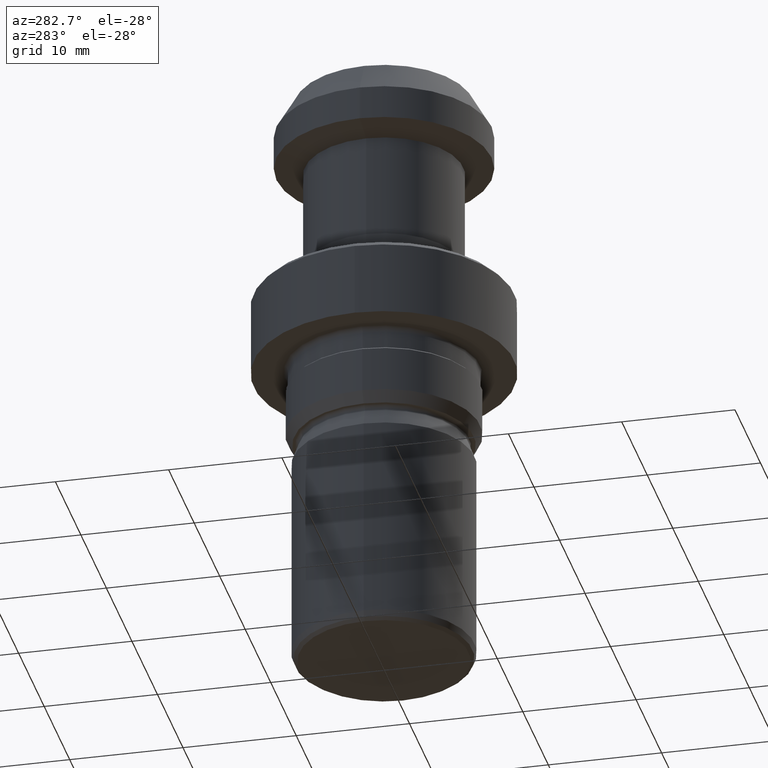
[diagram: clean part render]
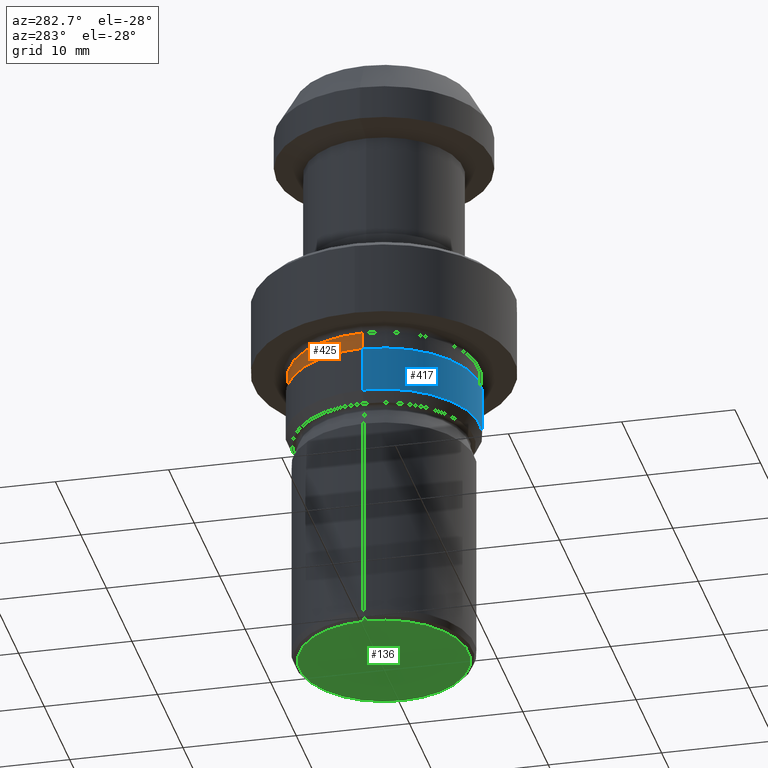
[diagram: same view with three faces highlighted in distinct colors, each labeled with its STEP entity id]
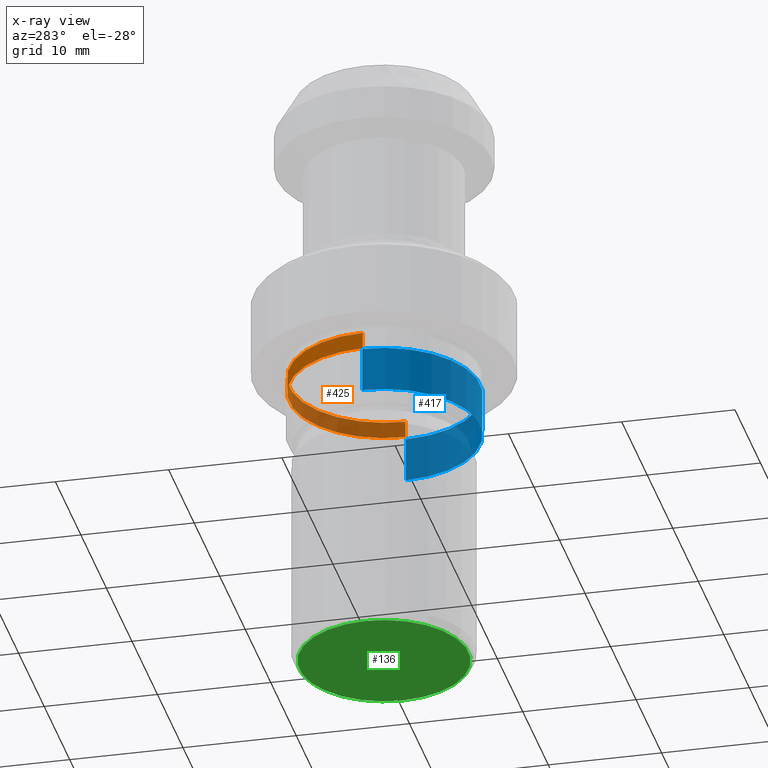
[diagram: x-ray of the same camera — body ghosted, the three highlighted faces saturated]
A machine part, auxiliary view with three faces highlighted in distinct colors.
The next image is the same camera in x-ray (body ghosted, the three faces saturated) — at least one of them is partly hidden behind the body in this view.
Their STEP definitions:

[orange] entity #425 — the highlighted cylindrical surface (partial cylindrical patch) has radius 8.35 mm, axis along (-0, -0, 1).
#12 = CARTESIAN_POINT ( 'NONE',  ( 0.0000000000000000000, 0.0000000000000000000, -26.34883009897343700 ) ) ;
#32 = DIRECTION ( 'NONE',  ( -0.0000000000000000000, -0.0000000000000000000, 1.000000000000000000 ) ) ;
#43 = CYLINDRICAL_SURFACE ( 'NONE', #536, 8.349999999999999600 ) ;
#70 = FACE_OUTER_BOUND ( 'NONE', #179, .T. ) ;
#118 = CARTESIAN_POINT ( 'NONE',  ( 8.349999999999999600, 1.031764928281626000E-015, -27.85000000000032100 ) ) ;
#168 = AXIS2_PLACEMENT_3D ( 'NONE', #12, #307, #931 ) ;
#179 = EDGE_LOOP ( 'NONE', ( #1041, #549, #1127, #309 ) ) ;
#229 = DIRECTION ( 'NONE',  ( -0.0000000000000000000, -0.0000000000000000000, 1.000000000000000000 ) ) ;
#256 = VERTEX_POINT ( 'NONE', #677 ) ;
#285 = CARTESIAN_POINT ( 'NONE',  ( 8.349999999999999600, 0.0000000000000000000, -26.34883009897343700 ) ) ;
#307 = DIRECTION ( 'NONE',  ( -0.0000000000000000000, -0.0000000000000000000, 1.000000000000000000 ) ) ;
#309 = ORIENTED_EDGE ( 'NONE', *, *, #1032, .F. ) ;
#336 = DIRECTION ( 'NONE',  ( -0.0000000000000000000, -0.0000000000000000000, 1.000000000000000000 ) ) ;
#389 = DIRECTION ( 'NONE',  ( -0.0000000000000000000, -0.0000000000000000000, 1.000000000000000000 ) ) ;
#425 = ADVANCED_FACE ( 'NONE', ( #70 ), #43, .T. ) ;
#471 = VECTOR ( 'NONE', #32, 1000.000000000000000 ) ;
#476 = CARTESIAN_POINT ( 'NONE',  ( 0.0000000000000000000, 0.0000000000000000000, 0.0000000000000000000 ) ) ;
#536 = AXIS2_PLACEMENT_3D ( 'NONE', #476, #389, #557 ) ;
#549 = ORIENTED_EDGE ( 'NONE', *, *, #1026, .T. ) ;
#557 = DIRECTION ( 'NONE',  ( 1.000000000000000000, 0.0000000000000000000, 0.0000000000000000000 ) ) ;
#604 = CARTESIAN_POINT ( 'NONE',  ( -8.349999999999999600, 1.022580077288039900E-015, -26.34883009897343700 ) ) ;
#636 = EDGE_CURVE ( 'NONE', #1167, #1128, #830, .T. ) ;
#657 = CIRCLE ( 'NONE', #925, 8.349999999999999600 ) ;
#677 = CARTESIAN_POINT ( 'NONE',  ( -8.349999999999999600, 0.0000000000000000000, -27.85000000000032100 ) ) ;
#830 = CIRCLE ( 'NONE', #168, 8.349999999999999600 ) ;
#844 = CARTESIAN_POINT ( 'NONE',  ( -8.349999999999999600, 1.022580077288039900E-015, 0.0000000000000000000 ) ) ;
#863 = CARTESIAN_POINT ( 'NONE',  ( 0.0000000000000000000, 0.0000000000000000000, -27.85000000000032100 ) ) ;
#878 = VERTEX_POINT ( 'NONE', #118 ) ;
#925 = AXIS2_PLACEMENT_3D ( 'NONE', #863, #336, #959 ) ;
#931 = DIRECTION ( 'NONE',  ( 1.000000000000000000, 0.0000000000000000000, 0.0000000000000000000 ) ) ;
#940 = LINE ( 'NONE', #844, #471 ) ;
#959 = DIRECTION ( 'NONE',  ( 1.000000000000000000, 0.0000000000000000000, 0.0000000000000000000 ) ) ;
#966 = CARTESIAN_POINT ( 'NONE',  ( 8.349999999999999600, 0.0000000000000000000, 0.0000000000000000000 ) ) ;
#1026 = EDGE_CURVE ( 'NONE', #256, #1128, #940, .T. ) ;
#1032 = EDGE_CURVE ( 'NONE', #878, #1167, #1171, .T. ) ;
#1041 = ORIENTED_EDGE ( 'NONE', *, *, #1077, .T. ) ;
#1077 = EDGE_CURVE ( 'NONE', #878, #256, #657, .T. ) ;
#1127 = ORIENTED_EDGE ( 'NONE', *, *, #636, .F. ) ;
#1128 = VERTEX_POINT ( 'NONE', #604 ) ;
#1146 = VECTOR ( 'NONE', #229, 1000.000000000000000 ) ;
#1167 = VERTEX_POINT ( 'NONE', #285 ) ;
#1171 = LINE ( 'NONE', #966, #1146 ) ;

[blue] entity #417 — the highlighted cylindrical surface (partial cylindrical patch) has radius 8.5 mm, axis along (-0, -0, 1).
#10 = CARTESIAN_POINT ( 'NONE',  ( 0.0000000000000000000, 0.0000000000000000000, -28.00000000000000400 ) ) ;
#55 = ORIENTED_EDGE ( 'NONE', *, *, #378, .F. ) ;
#61 = DIRECTION ( 'NONE',  ( 1.000000000000000000, 0.0000000000000000000, 0.0000000000000000000 ) ) ;
#63 = DIRECTION ( 'NONE',  ( 1.000000000000000000, 0.0000000000000000000, 0.0000000000000000000 ) ) ;
#85 = VECTOR ( 'NONE', #188, 1000.000000000000000 ) ;
#86 = CARTESIAN_POINT ( 'NONE',  ( 8.499999999999685600, 0.0000000000000000000, -32.00000000000000000 ) ) ;
#137 = CARTESIAN_POINT ( 'NONE',  ( -8.499999999999685600, 1.040949779275211700E-015, -28.00000000000000400 ) ) ;
#188 = DIRECTION ( 'NONE',  ( -0.0000000000000000000, -0.0000000000000000000, 1.000000000000000000 ) ) ;
#197 = DIRECTION ( 'NONE',  ( 1.000000000000000000, 0.0000000000000000000, 0.0000000000000000000 ) ) ;
#225 = CARTESIAN_POINT ( 'NONE',  ( 8.499999999999685600, 0.0000000000000000000, -28.00000000000000400 ) ) ;
#277 = EDGE_CURVE ( 'NONE', #563, #850, #633, .T. ) ;
#284 = ORIENTED_EDGE ( 'NONE', *, *, #430, .F. ) ;
#300 = CIRCLE ( 'NONE', #1005, 8.499999999999685600 ) ;
#350 = LINE ( 'NONE', #472, #85 ) ;
#375 = ORIENTED_EDGE ( 'NONE', *, *, #277, .T. ) ;
#378 = EDGE_CURVE ( 'NONE', #563, #1109, #809, .T. ) ;
#413 = CARTESIAN_POINT ( 'NONE',  ( -8.499999999999685600, 1.040949779275211500E-015, -32.00000000000000000 ) ) ;
#417 = ADVANCED_FACE ( 'NONE', ( #786 ), #531, .T. ) ;
#430 = EDGE_CURVE ( 'NONE', #1109, #808, #300, .T. ) ;
#472 = CARTESIAN_POINT ( 'NONE',  ( 8.499999999999685600, 0.0000000000000000000, 0.0000000000000000000 ) ) ;
#531 = CYLINDRICAL_SURFACE ( 'NONE', #1065, 8.499999999999685600 ) ;
#554 = VECTOR ( 'NONE', #1059, 1000.000000000000000 ) ;
#563 = VERTEX_POINT ( 'NONE', #413 ) ;
#633 = CIRCLE ( 'NONE', #1160, 8.499999999999685600 ) ;
#642 = DIRECTION ( 'NONE',  ( -0.0000000000000000000, -0.0000000000000000000, 1.000000000000000000 ) ) ;
#667 = EDGE_LOOP ( 'NONE', ( #55, #375, #1007, #284 ) ) ;
#684 = EDGE_CURVE ( 'NONE', #850, #808, #350, .T. ) ;
#763 = CARTESIAN_POINT ( 'NONE',  ( 0.0000000000000000000, 0.0000000000000000000, 0.0000000000000000000 ) ) ;
#784 = CARTESIAN_POINT ( 'NONE',  ( 0.0000000000000000000, 0.0000000000000000000, -32.00000000000000000 ) ) ;
#786 = FACE_OUTER_BOUND ( 'NONE', #667, .T. ) ;
#808 = VERTEX_POINT ( 'NONE', #225 ) ;
#809 = LINE ( 'NONE', #1134, #554 ) ;
#850 = VERTEX_POINT ( 'NONE', #86 ) ;
#976 = DIRECTION ( 'NONE',  ( -0.0000000000000000000, -0.0000000000000000000, 1.000000000000000000 ) ) ;
#981 = DIRECTION ( 'NONE',  ( -0.0000000000000000000, -0.0000000000000000000, 1.000000000000000000 ) ) ;
#1005 = AXIS2_PLACEMENT_3D ( 'NONE', #10, #642, #197 ) ;
#1007 = ORIENTED_EDGE ( 'NONE', *, *, #684, .T. ) ;
#1059 = DIRECTION ( 'NONE',  ( -0.0000000000000000000, -0.0000000000000000000, 1.000000000000000000 ) ) ;
#1065 = AXIS2_PLACEMENT_3D ( 'NONE', #763, #981, #63 ) ;
#1109 = VERTEX_POINT ( 'NONE', #137 ) ;
#1134 = CARTESIAN_POINT ( 'NONE',  ( -8.499999999999685600, 1.040949779275211700E-015, 0.0000000000000000000 ) ) ;
#1160 = AXIS2_PLACEMENT_3D ( 'NONE', #784, #976, #61 ) ;

[green] entity #136 — the highlighted planar face has unit normal (0, -0, 1).
#2 = AXIS2_PLACEMENT_3D ( 'NONE', #321, #943, #410 ) ;
#30 = DIRECTION ( 'NONE',  ( -0.0000000000000000000, -0.0000000000000000000, 1.000000000000000000 ) ) ;
#75 = VERTEX_POINT ( 'NONE', #453 ) ;
#116 = CARTESIAN_POINT ( 'NONE',  ( 0.0000000000000000000, 0.0000000000000000000, -54.00000000000000000 ) ) ;
#136 = ADVANCED_FACE ( 'NONE', ( #949 ), #286, .F. ) ;
#143 = CARTESIAN_POINT ( 'NONE',  ( 7.467441685850074500, 0.0000000000000000000, -54.00000000000000000 ) ) ;
#247 = CIRCLE ( 'NONE', #408, 7.467441685850074500 ) ;
#271 = ORIENTED_EDGE ( 'NONE', *, *, #1021, .F. ) ;
#279 = DIRECTION ( 'NONE',  ( 1.000000000000000000, 0.0000000000000000000, 0.0000000000000000000 ) ) ;
#286 = PLANE ( 'NONE',  #880 ) ;
#305 = DIRECTION ( 'NONE',  ( 1.000000000000000000, 0.0000000000000000000, 0.0000000000000000000 ) ) ;
#321 = CARTESIAN_POINT ( 'NONE',  ( 0.0000000000000000000, 0.0000000000000000000, -54.00000000000000000 ) ) ;
#361 = ORIENTED_EDGE ( 'NONE', *, *, #524, .F. ) ;
#408 = AXIS2_PLACEMENT_3D ( 'NONE', #116, #30, #305 ) ;
#410 = DIRECTION ( 'NONE',  ( 1.000000000000000000, 0.0000000000000000000, 0.0000000000000000000 ) ) ;
#453 = CARTESIAN_POINT ( 'NONE',  ( -7.467441685850074500, 9.348611795872582700E-016, -54.00000000000000000 ) ) ;
#523 = CIRCLE ( 'NONE', #2, 7.467441685850074500 ) ;
#524 = EDGE_CURVE ( 'NONE', #993, #75, #247, .T. ) ;
#573 = EDGE_LOOP ( 'NONE', ( #361, #271 ) ) ;
#880 = AXIS2_PLACEMENT_3D ( 'NONE', #1081, #1004, #279 ) ;
#943 = DIRECTION ( 'NONE',  ( -0.0000000000000000000, -0.0000000000000000000, 1.000000000000000000 ) ) ;
#949 = FACE_OUTER_BOUND ( 'NONE', #573, .T. ) ;
#993 = VERTEX_POINT ( 'NONE', #143 ) ;
#1004 = DIRECTION ( 'NONE',  ( 0.0000000000000000000, -0.0000000000000000000, 1.000000000000000000 ) ) ;
#1021 = EDGE_CURVE ( 'NONE', #75, #993, #523, .T. ) ;
#1081 = CARTESIAN_POINT ( 'NONE',  ( 0.0000000000000000000, 7.467441685850074500, -54.00000000000000000 ) ) ;